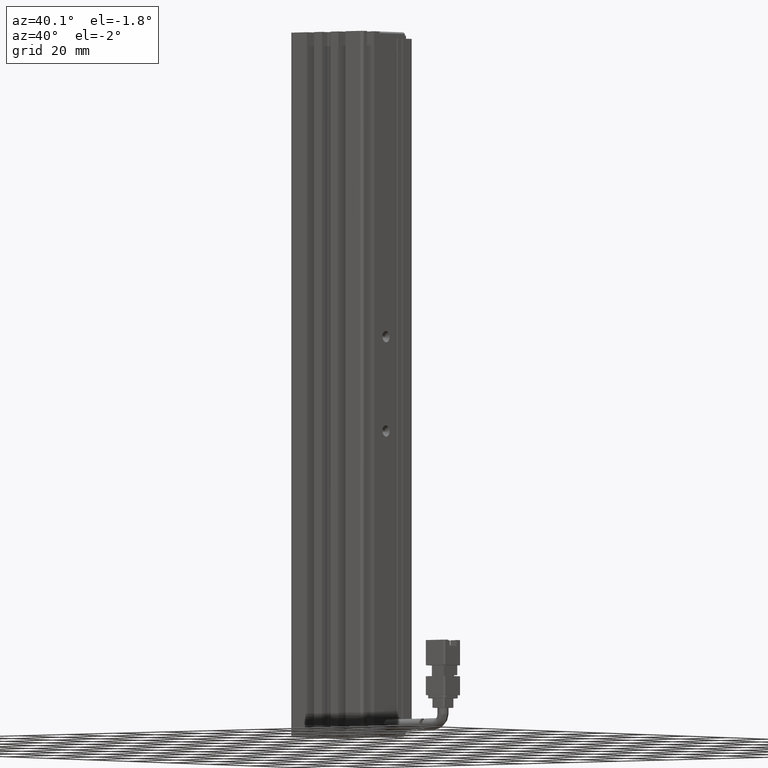
[diagram: clean part render]
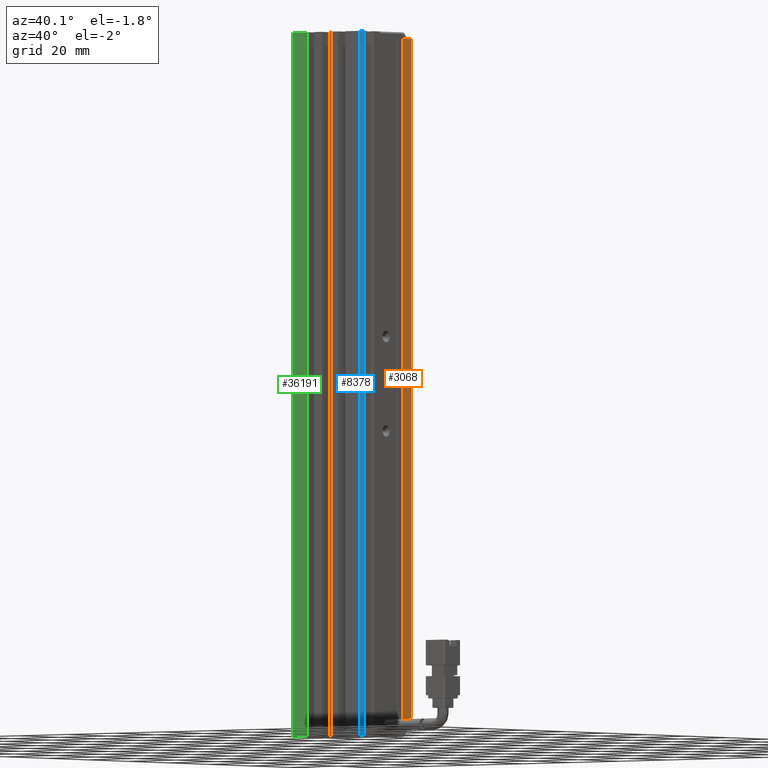
[diagram: same view with three faces highlighted in distinct colors, each labeled with its STEP entity id]
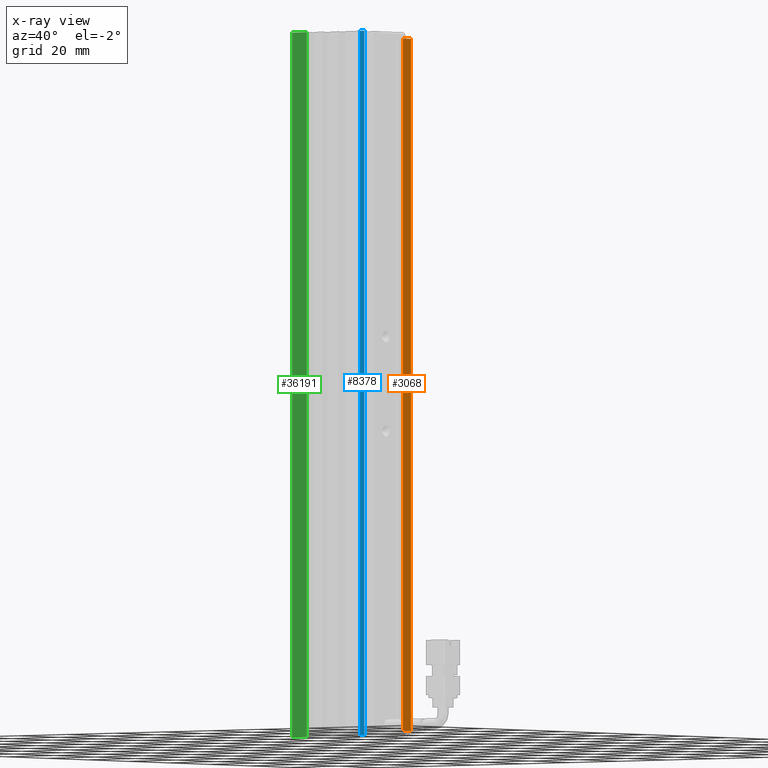
[diagram: x-ray of the same camera — body ghosted, the three highlighted faces saturated]
A machine part, auxiliary view with three faces highlighted in distinct colors.
The next image is the same camera in x-ray (body ghosted, the three faces saturated) — at least one of them is partly hidden behind the body in this view.
Their STEP definitions:

[orange] entity #3068 — the highlighted planar face has unit normal (-1, 0, 0).
#3068 = ADVANCED_FACE ( 'NONE', ( #47729 ), #25765, .F. ) ;
#3379 = AXIS2_PLACEMENT_3D ( 'NONE', #23550, #23487, #23385 ) ;
#4467 = CARTESIAN_POINT ( 'NONE',  ( 55.92537974683542500, 35.69594479660387500, -5.000000000000004400 ) ) ;
#5774 = EDGE_CURVE ( 'NONE', #39093, #26547, #22367, .T. ) ;
#11225 = EDGE_CURVE ( 'NONE', #22940, #28413, #26456, .T. ) ;
#12289 = ORIENTED_EDGE ( 'NONE', *, *, #11225, .F. ) ;
#14645 = VECTOR ( 'NONE', #38815, 1000.000000000000000 ) ;
#15104 = ORIENTED_EDGE ( 'NONE', *, *, #41180, .T. ) ;
#15718 = EDGE_CURVE ( 'NONE', #26547, #22940, #31549, .T. ) ;
#17889 = ORIENTED_EDGE ( 'NONE', *, *, #15718, .F. ) ;
#19287 = DIRECTION ( 'NONE',  ( -0.0000000000000000000, -0.0000000000000000000, -1.000000000000000000 ) ) ;
#19993 = CARTESIAN_POINT ( 'NONE',  ( 55.92537974683542500, 34.69594479660387500, -3.000000000000002700 ) ) ;
#21384 = VECTOR ( 'NONE', #40197, 1000.000000000000000 ) ;
#22367 = LINE ( 'NONE', #19993, #41452 ) ;
#22940 = VERTEX_POINT ( 'NONE', #35106 ) ;
#23385 = DIRECTION ( 'NONE',  ( 0.0000000000000000000, 0.0000000000000000000, 1.000000000000000000 ) ) ;
#23487 = DIRECTION ( 'NONE',  ( -1.000000000000000000, 0.0000000000000000000, 0.0000000000000000000 ) ) ;
#23550 = CARTESIAN_POINT ( 'NONE',  ( 55.92537974683542500, 7.083797468354437600, -3.000000000000002700 ) ) ;
#24864 = CARTESIAN_POINT ( 'NONE',  ( 55.92537974683542500, 35.69594479660387500, -225.0000000000000000 ) ) ;
#25765 = PLANE ( 'NONE',  #3379 ) ;
#26456 = LINE ( 'NONE', #38505, #46698 ) ;
#26547 = VERTEX_POINT ( 'NONE', #45306 ) ;
#26992 = CARTESIAN_POINT ( 'NONE',  ( 55.92537974683542500, 30.69594479660386800, -5.000000000000004400 ) ) ;
#28413 = VERTEX_POINT ( 'NONE', #26992 ) ;
#31549 = LINE ( 'NONE', #24864, #21384 ) ;
#35106 = CARTESIAN_POINT ( 'NONE',  ( 55.92537974683542500, 30.69594479660386800, -225.0000000000000000 ) ) ;
#36521 = ORIENTED_EDGE ( 'NONE', *, *, #5774, .F. ) ;
#38432 = DIRECTION ( 'NONE',  ( 0.0000000000000000000, 0.0000000000000000000, 1.000000000000000000 ) ) ;
#38505 = CARTESIAN_POINT ( 'NONE',  ( 55.92537974683542500, 30.69594479660386800, -3.000000000000002700 ) ) ;
#38815 = DIRECTION ( 'NONE',  ( -0.0000000000000000000, -1.000000000000000000, -0.0000000000000000000 ) ) ;
#38950 = CARTESIAN_POINT ( 'NONE',  ( 55.92537974683542500, 34.69594479660387500, -5.000000000000004400 ) ) ;
#39093 = VERTEX_POINT ( 'NONE', #38950 ) ;
#40197 = DIRECTION ( 'NONE',  ( -0.0000000000000000000, -1.000000000000000000, -0.0000000000000000000 ) ) ;
#41180 = EDGE_CURVE ( 'NONE', #39093, #28413, #43839, .T. ) ;
#41452 = VECTOR ( 'NONE', #19287, 1000.000000000000000 ) ;
#43839 = LINE ( 'NONE', #4467, #14645 ) ;
#45306 = CARTESIAN_POINT ( 'NONE',  ( 55.92537974683542500, 34.69594479660387500, -225.0000000000000000 ) ) ;
#45399 = EDGE_LOOP ( 'NONE', ( #15104, #12289, #17889, #36521 ) ) ;
#46698 = VECTOR ( 'NONE', #38432, 1000.000000000000000 ) ;
#47729 = FACE_OUTER_BOUND ( 'NONE', #45399, .T. ) ;

[blue] entity #8378 — the highlighted cylindrical surface (edge-blend (fillet) strip) has radius 1 mm, axis along (-0, -0, -1).
#350 = CARTESIAN_POINT ( 'NONE',  ( 54.92537974683542500, 10.69594479660386800, -3.000000000000002700 ) ) ;
#2735 = LINE ( 'NONE', #19745, #12869 ) ;
#3069 = ORIENTED_EDGE ( 'NONE', *, *, #21623, .T. ) ;
#4950 = ORIENTED_EDGE ( 'NONE', *, *, #43535, .T. ) ;
#8378 = ADVANCED_FACE ( 'NONE', ( #49316 ), #25470, .T. ) ;
#10220 = CARTESIAN_POINT ( 'NONE',  ( 54.92537974683542500, 10.69594479660386800, -227.0000000000000000 ) ) ;
#10432 = EDGE_CURVE ( 'NONE', #30316, #31511, #36779, .T. ) ;
#11369 = CARTESIAN_POINT ( 'NONE',  ( 55.92537974683542500, 11.69594479660387000, -227.0000000000000000 ) ) ;
#12378 = AXIS2_PLACEMENT_3D ( 'NONE', #20382, #28119, #27564 ) ;
#12401 = DIRECTION ( 'NONE',  ( 0.0000000000000000000, 0.0000000000000000000, 1.000000000000000000 ) ) ;
#12869 = VECTOR ( 'NONE', #12401, 1000.000000000000000 ) ;
#13561 = CIRCLE ( 'NONE', #23465, 1.000000000000000900 ) ;
#15046 = DIRECTION ( 'NONE',  ( 0.0000000000000000000, 0.0000000000000000000, 1.000000000000000000 ) ) ;
#16823 = CIRCLE ( 'NONE', #47242, 1.000000000000000900 ) ;
#17590 = CARTESIAN_POINT ( 'NONE',  ( 54.92537974683542500, 10.69594479660386800, -3.000000000000002700 ) ) ;
#17712 = DIRECTION ( 'NONE',  ( -0.0000000000000000000, -0.0000000000000000000, -1.000000000000000000 ) ) ;
#17868 = DIRECTION ( 'NONE',  ( -0.0000000000000000000, -0.0000000000000000000, -1.000000000000000000 ) ) ;
#19084 = ORIENTED_EDGE ( 'NONE', *, *, #10432, .T. ) ;
#19745 = CARTESIAN_POINT ( 'NONE',  ( 55.92537974683542500, 11.69594479660387000, -3.000000000000002700 ) ) ;
#20382 = CARTESIAN_POINT ( 'NONE',  ( 54.92537974683542500, 11.69594479660387000, -3.000000000000002700 ) ) ;
#21623 = EDGE_CURVE ( 'NONE', #31511, #24099, #13561, .T. ) ;
#23465 = AXIS2_PLACEMENT_3D ( 'NONE', #37873, #15046, #41658 ) ;
#23695 = EDGE_CURVE ( 'NONE', #24099, #38498, #2735, .T. ) ;
#24099 = VERTEX_POINT ( 'NONE', #11369 ) ;
#25470 = CYLINDRICAL_SURFACE ( 'NONE', #12378, 1.000000000000000900 ) ;
#27564 = DIRECTION ( 'NONE',  ( -1.000000000000000000, 0.0000000000000000000, 0.0000000000000000000 ) ) ;
#28119 = DIRECTION ( 'NONE',  ( -0.0000000000000000000, -0.0000000000000000000, -1.000000000000000000 ) ) ;
#30316 = VERTEX_POINT ( 'NONE', #350 ) ;
#31448 = CARTESIAN_POINT ( 'NONE',  ( 55.92537974683542500, 11.69594479660387000, -3.000000000000002700 ) ) ;
#31511 = VERTEX_POINT ( 'NONE', #10220 ) ;
#36779 = LINE ( 'NONE', #17590, #46873 ) ;
#37524 = ORIENTED_EDGE ( 'NONE', *, *, #23695, .T. ) ;
#37873 = CARTESIAN_POINT ( 'NONE',  ( 54.92537974683542500, 11.69594479660387000, -227.0000000000000000 ) ) ;
#38498 = VERTEX_POINT ( 'NONE', #31448 ) ;
#40507 = CARTESIAN_POINT ( 'NONE',  ( 54.92537974683542500, 11.69594479660387000, -3.000000000000002700 ) ) ;
#41658 = DIRECTION ( 'NONE',  ( -1.000000000000000000, 0.0000000000000000000, 0.0000000000000000000 ) ) ;
#43535 = EDGE_CURVE ( 'NONE', #38498, #30316, #16823, .T. ) ;
#44354 = DIRECTION ( 'NONE',  ( -1.000000000000000000, 0.0000000000000000000, 0.0000000000000000000 ) ) ;
#45385 = EDGE_LOOP ( 'NONE', ( #4950, #19084, #3069, #37524 ) ) ;
#46873 = VECTOR ( 'NONE', #17868, 1000.000000000000000 ) ;
#47242 = AXIS2_PLACEMENT_3D ( 'NONE', #40507, #17712, #44354 ) ;
#49316 = FACE_OUTER_BOUND ( 'NONE', #45385, .T. ) ;

[green] entity #36191 — the highlighted planar face has unit normal (0, -1, 0).
#236 = DIRECTION ( 'NONE',  ( 0.0000000000000000000, 0.0000000000000000000, 1.000000000000000000 ) ) ;
#1017 = PLANE ( 'NONE',  #30119 ) ;
#1112 = VERTEX_POINT ( 'NONE', #16589 ) ;
#1186 = DIRECTION ( 'NONE',  ( 0.0000000000000000000, -0.0000000000000000000, -1.000000000000000000 ) ) ;
#2801 = ORIENTED_EDGE ( 'NONE', *, *, #42494, .T. ) ;
#4495 = CARTESIAN_POINT ( 'NONE',  ( 32.92537974683543200, 10.69594479660386800, -227.0000000000000000 ) ) ;
#6008 = DIRECTION ( 'NONE',  ( 1.000000000000000000, 0.0000000000000000000, 0.0000000000000000000 ) ) ;
#7050 = CARTESIAN_POINT ( 'NONE',  ( 32.92537974683543200, 10.69594479660386800, -3.000000000000002700 ) ) ;
#9727 = ORIENTED_EDGE ( 'NONE', *, *, #30680, .F. ) ;
#10638 = EDGE_CURVE ( 'NONE', #11944, #26236, #42060, .T. ) ;
#11944 = VERTEX_POINT ( 'NONE', #4495 ) ;
#12356 = CARTESIAN_POINT ( 'NONE',  ( 32.92537974683543200, 10.69594479660386800, -3.000000000000002700 ) ) ;
#13142 = EDGE_LOOP ( 'NONE', ( #9727, #2801, #15003, #14404 ) ) ;
#14380 = LINE ( 'NONE', #47767, #43554 ) ;
#14404 = ORIENTED_EDGE ( 'NONE', *, *, #10638, .T. ) ;
#15003 = ORIENTED_EDGE ( 'NONE', *, *, #39385, .T. ) ;
#16589 = CARTESIAN_POINT ( 'NONE',  ( 26.92537974683542100, 10.69594479660386800, -227.0000000000000000 ) ) ;
#18323 = DIRECTION ( 'NONE',  ( 0.0000000000000000000, -0.0000000000000000000, -1.000000000000000000 ) ) ;
#18412 = VERTEX_POINT ( 'NONE', #48040 ) ;
#19418 = LINE ( 'NONE', #45111, #29560 ) ;
#21922 = DIRECTION ( 'NONE',  ( 1.000000000000000000, 0.0000000000000000000, 0.0000000000000000000 ) ) ;
#24025 = DIRECTION ( 'NONE',  ( 0.0000000000000000000, -1.000000000000000000, 0.0000000000000000000 ) ) ;
#24997 = FACE_OUTER_BOUND ( 'NONE', #13142, .T. ) ;
#26236 = VERTEX_POINT ( 'NONE', #12356 ) ;
#29560 = VECTOR ( 'NONE', #18323, 1000.000000000000000 ) ;
#30119 = AXIS2_PLACEMENT_3D ( 'NONE', #46812, #24025, #1186 ) ;
#30680 = EDGE_CURVE ( 'NONE', #18412, #26236, #14380, .T. ) ;
#31115 = VECTOR ( 'NONE', #21922, 1000.000000000000000 ) ;
#33313 = CARTESIAN_POINT ( 'NONE',  ( 40.92537974683542500, 10.69594479660386800, -227.0000000000000000 ) ) ;
#36191 = ADVANCED_FACE ( 'NONE', ( #24997 ), #1017, .T. ) ;
#39385 = EDGE_CURVE ( 'NONE', #1112, #11944, #41250, .T. ) ;
#41250 = LINE ( 'NONE', #33313, #31115 ) ;
#42060 = LINE ( 'NONE', #7050, #43273 ) ;
#42494 = EDGE_CURVE ( 'NONE', #18412, #1112, #19418, .T. ) ;
#43273 = VECTOR ( 'NONE', #236, 1000.000000000000000 ) ;
#43554 = VECTOR ( 'NONE', #6008, 1000.000000000000000 ) ;
#45111 = CARTESIAN_POINT ( 'NONE',  ( 26.92537974683542100, 10.69594479660386800, -3.000000000000002700 ) ) ;
#46812 = CARTESIAN_POINT ( 'NONE',  ( 40.92537974683542500, 10.69594479660386800, -3.000000000000002700 ) ) ;
#47767 = CARTESIAN_POINT ( 'NONE',  ( 40.92537974683542500, 10.69594479660386800, -3.000000000000002700 ) ) ;
#48040 = CARTESIAN_POINT ( 'NONE',  ( 26.92537974683542100, 10.69594479660386800, -3.000000000000002700 ) ) ;